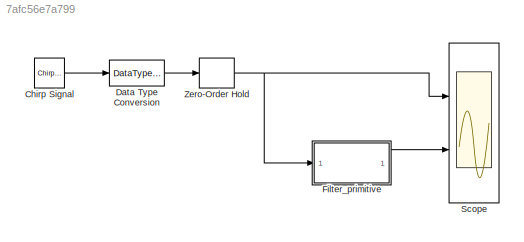
MODEL slx_7afc56e7a799
KIND model
CONFIG AbsTol = auto
CONFIG FixedStep = auto
CONFIG MaxStep = auto
CONFIG MinStep = auto
CONFIG RelTol = 1e-3
CONFIG SampleTimeConstraint = Unconstrained
CONFIG Solver = FixedStepDiscrete
CONFIG SolverMode = SingleTasking
CONFIG SolverName = FixedStepDiscrete
CONFIG StartTime = 0.0
CONFIG StopTime = 10.0
BLOCK [Reference] Chirp Signal  REF=simulink/Sources/Chirp Signal
  Ports = [0, 1]
  SourceBlock = simulink/Sources/Chirp Signal
  SourceType = chirp
BLOCK [DataTypeConversion] Data Type Conversion
  OutDataTypeStr = fixdt(1,16,14)
  RndMeth = Nearest
  SaturateOnIntegerOverflow = off
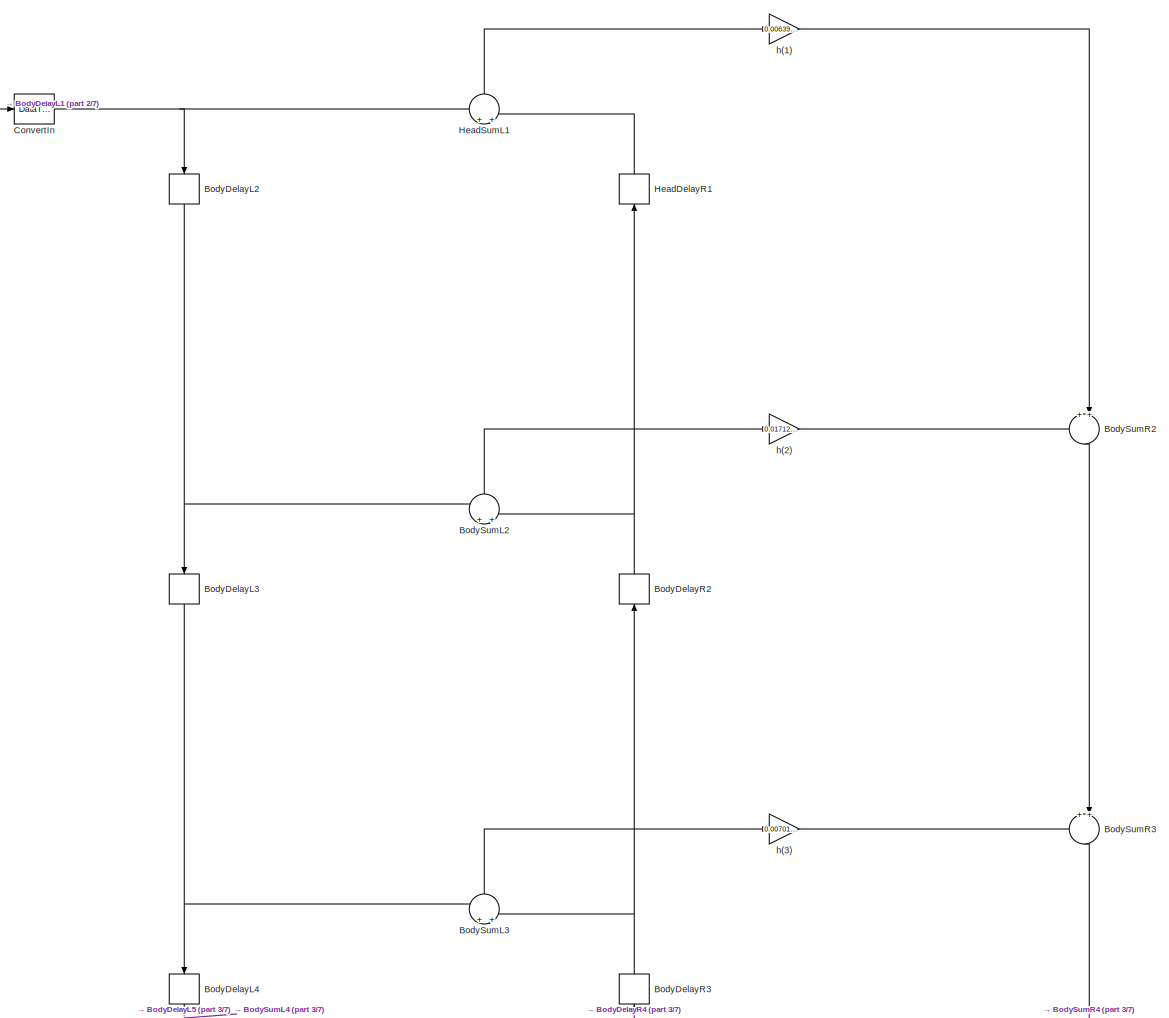
[diagram: Filter_primitive - part 1/7, full width, top band]
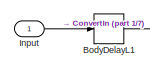
[diagram: Filter_primitive - part 2/7, top left region]
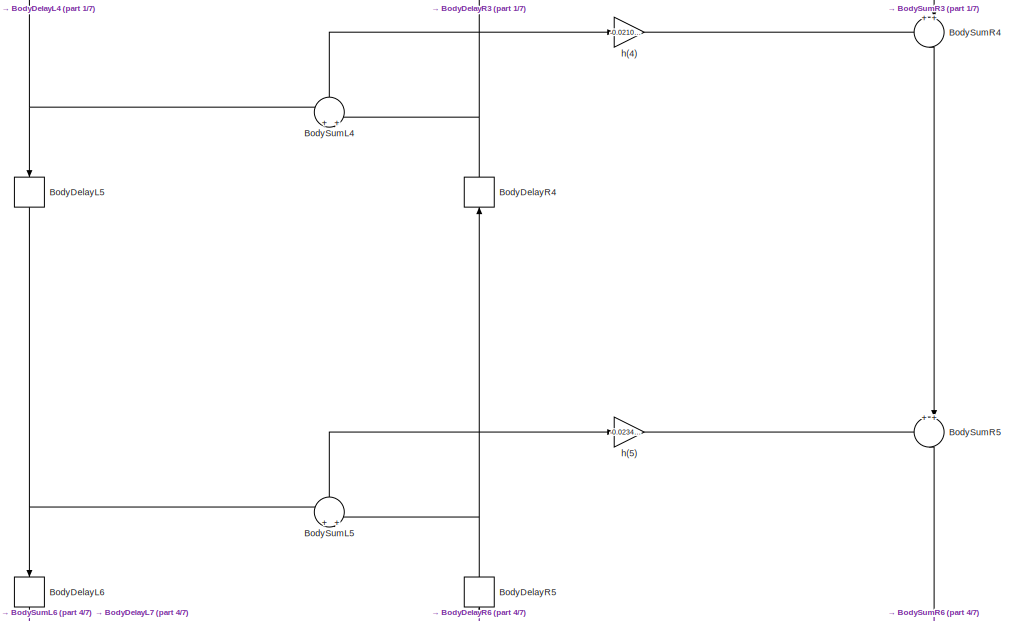
[diagram: Filter_primitive - part 3/7, top center region]
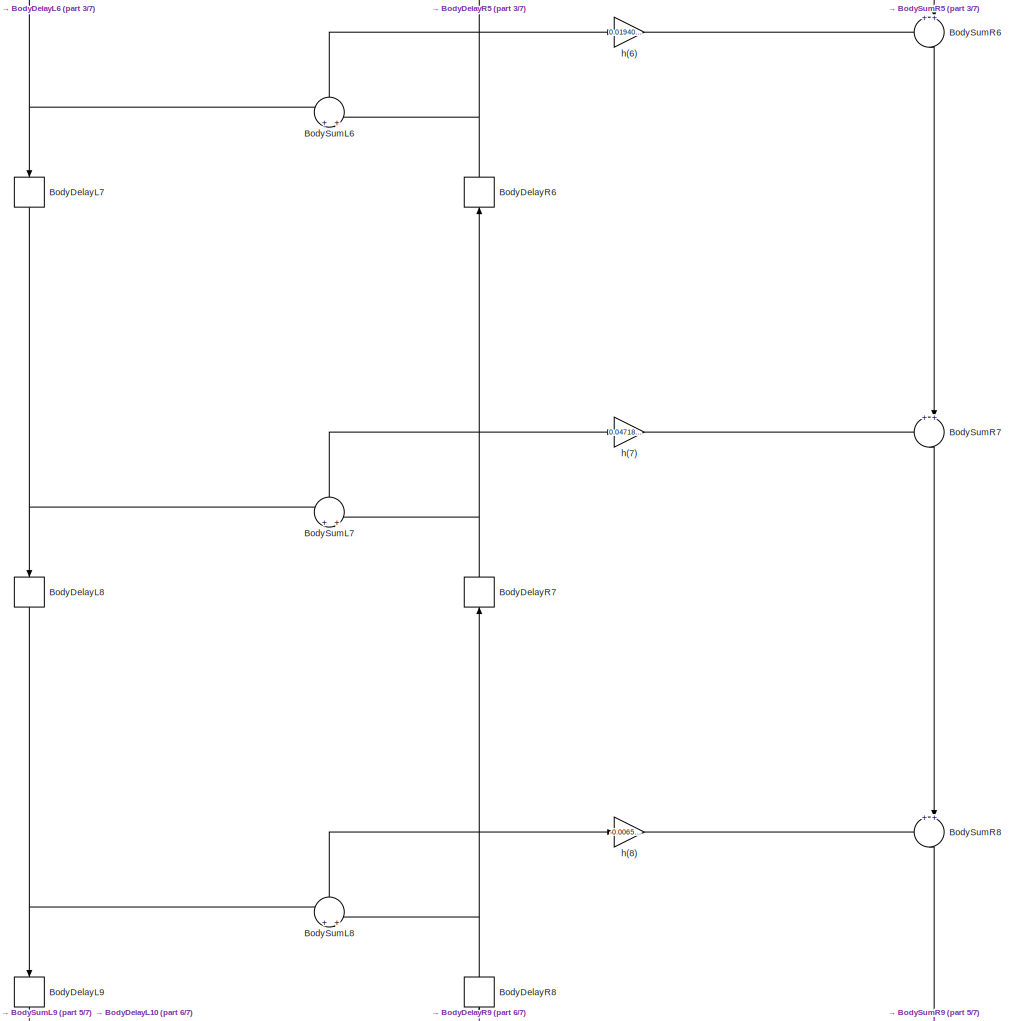
[diagram: Filter_primitive - part 4/7, central region]
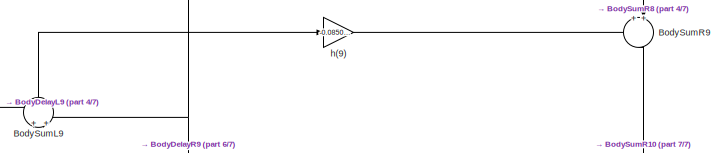
[diagram: Filter_primitive - part 5/7, bottom center region]
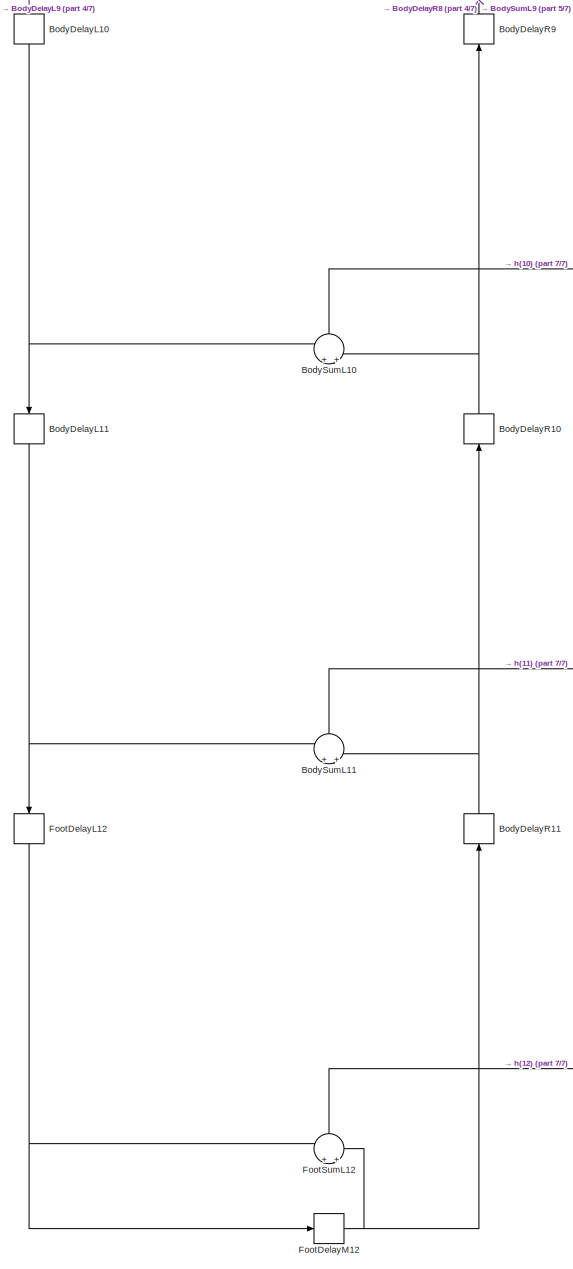
[diagram: Filter_primitive - part 6/7, bottom center region]
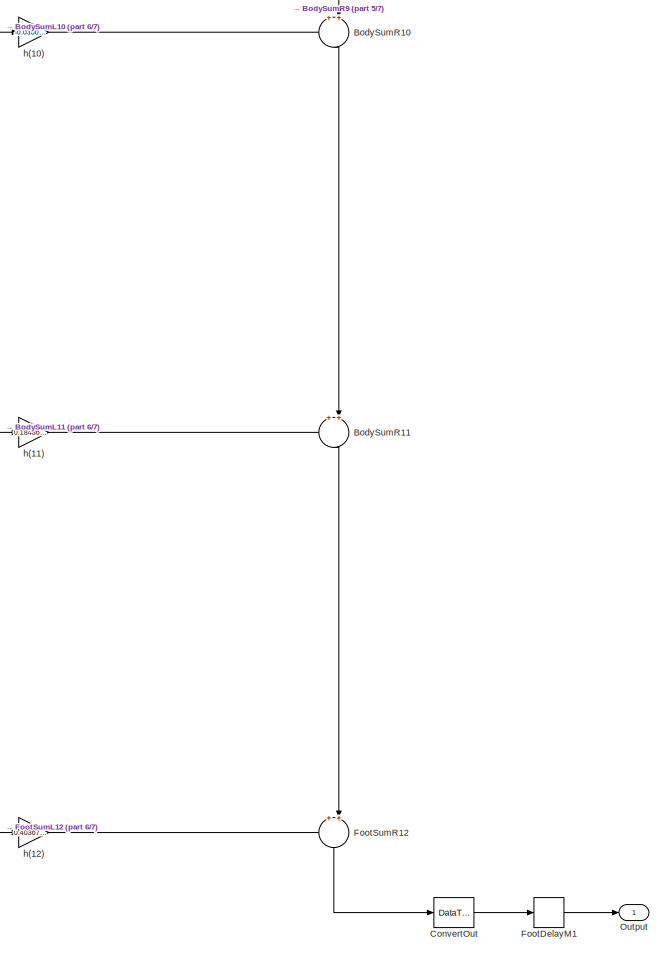
[diagram: Filter_primitive - part 7/7, bottom right region]
BLOCK [SubSystem] Filter_primitive
  ErrorFcn = dspFilterRealizedInBasicElemsAlgLoopErrFcnCallback
  Ports = [1, 1]
  RequestExecContextInheritance = off
  Tag = FilterWizardSubSystem
  UserDataPersistent = on
  Variant = off
BLOCK [Delay] Filter_primitive/BodyDelayL1
  DelayLength = 1
  InitialCondition = 0
  InputPortMap = u0
  InputProcessing = Columns as channels (frame based)
  Ports = [1, 1]
  UserDataPersistent = on
BLOCK [Delay] Filter_primitive/BodyDelayL10
  DelayLength = 1
  InitialCondition = 0
  InputPortMap = u0
  InputProcessing = Columns as channels (frame based)
  Ports = [1, 1]
  UserDataPersistent = on
BLOCK [Delay] Filter_primitive/BodyDelayL11
  DelayLength = 1
  InitialCondition = 0
  InputPortMap = u0
  InputProcessing = Columns as channels (frame based)
  Ports = [1, 1]
  UserDataPersistent = on
BLOCK [Delay] Filter_primitive/BodyDelayL2
  DelayLength = 1
  InitialCondition = 0
  InputPortMap = u0
  InputProcessing = Columns as channels (frame based)
  Ports = [1, 1]
  UserDataPersistent = on
BLOCK [Delay] Filter_primitive/BodyDelayL3
  DelayLength = 1
  InitialCondition = 0
  InputPortMap = u0
  InputProcessing = Columns as channels (frame based)
  Ports = [1, 1]
  UserDataPersistent = on
BLOCK [Delay] Filter_primitive/BodyDelayL4
  DelayLength = 1
  InitialCondition = 0
  InputPortMap = u0
  InputProcessing = Columns as channels (frame based)
  Ports = [1, 1]
  UserDataPersistent = on
BLOCK [Delay] Filter_primitive/BodyDelayL5
  DelayLength = 1
  InitialCondition = 0
  InputPortMap = u0
  InputProcessing = Columns as channels (frame based)
  Ports = [1, 1]
  UserDataPersistent = on
BLOCK [Delay] Filter_primitive/BodyDelayL6
  DelayLength = 1
  InitialCondition = 0
  InputPortMap = u0
  InputProcessing = Columns as channels (frame based)
  Ports = [1, 1]
  UserDataPersistent = on
BLOCK [Delay] Filter_primitive/BodyDelayL7
  DelayLength = 1
  InitialCondition = 0
  InputPortMap = u0
  InputProcessing = Columns as channels (frame based)
  Ports = [1, 1]
  UserDataPersistent = on
BLOCK [Delay] Filter_primitive/BodyDelayL8
  DelayLength = 1
  InitialCondition = 0
  InputPortMap = u0
  InputProcessing = Columns as channels (frame based)
  Ports = [1, 1]
  UserDataPersistent = on
BLOCK [Delay] Filter_primitive/BodyDelayL9
  DelayLength = 1
  InitialCondition = 0
  InputPortMap = u0
  InputProcessing = Columns as channels (frame based)
  Ports = [1, 1]
  UserDataPersistent = on
BLOCK [Delay] Filter_primitive/BodyDelayR10
  DelayLength = 1
  InitialCondition = 0
  InputPortMap = u0
  InputProcessing = Columns as channels (frame based)
  Ports = [1, 1]
  UserDataPersistent = on
BLOCK [Delay] Filter_primitive/BodyDelayR11
  DelayLength = 1
  InitialCondition = 0
  InputPortMap = u0
  InputProcessing = Columns as channels (frame based)
  Ports = [1, 1]
  UserDataPersistent = on
BLOCK [Delay] Filter_primitive/BodyDelayR2
  DelayLength = 1
  InitialCondition = 0
  InputPortMap = u0
  InputProcessing = Columns as channels (frame based)
  Ports = [1, 1]
  UserDataPersistent = on
BLOCK [Delay] Filter_primitive/BodyDelayR3
  DelayLength = 1
  InitialCondition = 0
  InputPortMap = u0
  InputProcessing = Columns as channels (frame based)
  Ports = [1, 1]
  UserDataPersistent = on
BLOCK [Delay] Filter_primitive/BodyDelayR4
  DelayLength = 1
  InitialCondition = 0
  InputPortMap = u0
  InputProcessing = Columns as channels (frame based)
  Ports = [1, 1]
  UserDataPersistent = on
BLOCK [Delay] Filter_primitive/BodyDelayR5
  DelayLength = 1
  InitialCondition = 0
  InputPortMap = u0
  InputProcessing = Columns as channels (frame based)
  Ports = [1, 1]
  UserDataPersistent = on
BLOCK [Delay] Filter_primitive/BodyDelayR6
  DelayLength = 1
  InitialCondition = 0
  InputPortMap = u0
  InputProcessing = Columns as channels (frame based)
  Ports = [1, 1]
  UserDataPersistent = on
BLOCK [Delay] Filter_primitive/BodyDelayR7
  DelayLength = 1
  InitialCondition = 0
  InputPortMap = u0
  InputProcessing = Columns as channels (frame based)
  Ports = [1, 1]
  UserDataPersistent = on
BLOCK [Delay] Filter_primitive/BodyDelayR8
  DelayLength = 1
  InitialCondition = 0
  InputPortMap = u0
  InputProcessing = Columns as channels (frame based)
  Ports = [1, 1]
  UserDataPersistent = on
BLOCK [Delay] Filter_primitive/BodyDelayR9
  DelayLength = 1
  InitialCondition = 0
  InputPortMap = u0
  InputProcessing = Columns as channels (frame based)
  Ports = [1, 1]
  UserDataPersistent = on
BLOCK [Sum] Filter_primitive/BodySumL10
  AccumDataTypeStr = fixdt(1,17,14)
  IconShape = round
  InputSameDT = off
  Inputs = +|+
  OutDataTypeStr = fixdt(1,17,14)
  Ports = [2, 1]
  RndMeth = Convergent
  SaturateOnIntegerOverflow = off
BLOCK [Sum] Filter_primitive/BodySumL11
  AccumDataTypeStr = fixdt(1,17,14)
  IconShape = round
  InputSameDT = off
  Inputs = +|+
  OutDataTypeStr = fixdt(1,17,14)
  Ports = [2, 1]
  RndMeth = Convergent
  SaturateOnIntegerOverflow = off
BLOCK [Sum] Filter_primitive/BodySumL2
  AccumDataTypeStr = fixdt(1,17,14)
  IconShape = round
  InputSameDT = off
  Inputs = +|+
  OutDataTypeStr = fixdt(1,17,14)
  Ports = [2, 1]
  RndMeth = Convergent
  SaturateOnIntegerOverflow = off
BLOCK [Sum] Filter_primitive/BodySumL3
  AccumDataTypeStr = fixdt(1,17,14)
  IconShape = round
  InputSameDT = off
  Inputs = +|+
  OutDataTypeStr = fixdt(1,17,14)
  Ports = [2, 1]
  RndMeth = Convergent
  SaturateOnIntegerOverflow = off
BLOCK [Sum] Filter_primitive/BodySumL4
  AccumDataTypeStr = fixdt(1,17,14)
  IconShape = round
  InputSameDT = off
  Inputs = +|+
  OutDataTypeStr = fixdt(1,17,14)
  Ports = [2, 1]
  RndMeth = Convergent
  SaturateOnIntegerOverflow = off
BLOCK [Sum] Filter_primitive/BodySumL5
  AccumDataTypeStr = fixdt(1,17,14)
  IconShape = round
  InputSameDT = off
  Inputs = +|+
  OutDataTypeStr = fixdt(1,17,14)
  Ports = [2, 1]
  RndMeth = Convergent
  SaturateOnIntegerOverflow = off
BLOCK [Sum] Filter_primitive/BodySumL6
  AccumDataTypeStr = fixdt(1,17,14)
  IconShape = round
  InputSameDT = off
  Inputs = +|+
  OutDataTypeStr = fixdt(1,17,14)
  Ports = [2, 1]
  RndMeth = Convergent
  SaturateOnIntegerOverflow = off
BLOCK [Sum] Filter_primitive/BodySumL7
  AccumDataTypeStr = fixdt(1,17,14)
  IconShape = round
  InputSameDT = off
  Inputs = +|+
  OutDataTypeStr = fixdt(1,17,14)
  Ports = [2, 1]
  RndMeth = Convergent
  SaturateOnIntegerOverflow = off
BLOCK [Sum] Filter_primitive/BodySumL8
  AccumDataTypeStr = fixdt(1,17,14)
  IconShape = round
  InputSameDT = off
  Inputs = +|+
  OutDataTypeStr = fixdt(1,17,14)
  Ports = [2, 1]
  RndMeth = Convergent
  SaturateOnIntegerOverflow = off
BLOCK [Sum] Filter_primitive/BodySumL9
  AccumDataTypeStr = fixdt(1,17,14)
  IconShape = round
  InputSameDT = off
  Inputs = +|+
  OutDataTypeStr = fixdt(1,17,14)
  Ports = [2, 1]
  RndMeth = Convergent
  SaturateOnIntegerOverflow = off
BLOCK [Sum] Filter_primitive/BodySumR10
  AccumDataTypeStr = fixdt(1,33,30)
  IconShape = round
  InputSameDT = off
  Inputs = ++|
  OutDataTypeStr = fixdt(1,33,30)
  Ports = [2, 1]
  RndMeth = Convergent
  SaturateOnIntegerOverflow = off
BLOCK [Sum] Filter_primitive/BodySumR11
  AccumDataTypeStr = fixdt(1,33,30)
  IconShape = round
  InputSameDT = off
  Inputs = ++|
  OutDataTypeStr = fixdt(1,33,30)
  Ports = [2, 1]
  RndMeth = Convergent
  SaturateOnIntegerOverflow = off
BLOCK [Sum] Filter_primitive/BodySumR2
  AccumDataTypeStr = fixdt(1,33,30)
  IconShape = round
  InputSameDT = off
  Inputs = ++|
  OutDataTypeStr = fixdt(1,33,30)
  Ports = [2, 1]
  RndMeth = Convergent
  SaturateOnIntegerOverflow = off
BLOCK [Sum] Filter_primitive/BodySumR3
  AccumDataTypeStr = fixdt(1,33,30)
  IconShape = round
  InputSameDT = off
  Inputs = ++|
  OutDataTypeStr = fixdt(1,33,30)
  Ports = [2, 1]
  RndMeth = Convergent
  SaturateOnIntegerOverflow = off
BLOCK [Sum] Filter_primitive/BodySumR4
  AccumDataTypeStr = fixdt(1,33,30)
  IconShape = round
  InputSameDT = off
  Inputs = ++|
  OutDataTypeStr = fixdt(1,33,30)
  Ports = [2, 1]
  RndMeth = Convergent
  SaturateOnIntegerOverflow = off
BLOCK [Sum] Filter_primitive/BodySumR5
  AccumDataTypeStr = fixdt(1,33,30)
  IconShape = round
  InputSameDT = off
  Inputs = ++|
  OutDataTypeStr = fixdt(1,33,30)
  Ports = [2, 1]
  RndMeth = Convergent
  SaturateOnIntegerOverflow = off
BLOCK [Sum] Filter_primitive/BodySumR6
  AccumDataTypeStr = fixdt(1,33,30)
  IconShape = round
  InputSameDT = off
  Inputs = ++|
  OutDataTypeStr = fixdt(1,33,30)
  Ports = [2, 1]
  RndMeth = Convergent
  SaturateOnIntegerOverflow = off
BLOCK [Sum] Filter_primitive/BodySumR7
  AccumDataTypeStr = fixdt(1,33,30)
  IconShape = round
  InputSameDT = off
  Inputs = ++|
  OutDataTypeStr = fixdt(1,33,30)
  Ports = [2, 1]
  RndMeth = Convergent
  SaturateOnIntegerOverflow = off
BLOCK [Sum] Filter_primitive/BodySumR8
  AccumDataTypeStr = fixdt(1,33,30)
  IconShape = round
  InputSameDT = off
  Inputs = ++|
  OutDataTypeStr = fixdt(1,33,30)
  Ports = [2, 1]
  RndMeth = Convergent
  SaturateOnIntegerOverflow = off
BLOCK [Sum] Filter_primitive/BodySumR9
  AccumDataTypeStr = fixdt(1,33,30)
  IconShape = round
  InputSameDT = off
  Inputs = ++|
  OutDataTypeStr = fixdt(1,33,30)
  Ports = [2, 1]
  RndMeth = Convergent
  SaturateOnIntegerOverflow = off
BLOCK [DataTypeConversion] Filter_primitive/ConvertIn
  OutDataTypeStr = fixdt(1,16,14)
  RndMeth = Nearest
BLOCK [DataTypeConversion] Filter_primitive/ConvertOut
  OutDataTypeStr = fixdt(1,33,30)
  RndMeth = Convergent
  SaturateOnIntegerOverflow = off
BLOCK [Delay] Filter_primitive/FootDelayL12
  DelayLength = 1
  InitialCondition = 0
  InputPortMap = u0
  InputProcessing = Columns as channels (frame based)
  Ports = [1, 1]
  UserDataPersistent = on
BLOCK [Delay] Filter_primitive/FootDelayM1
  DelayLength = 1
  InitialCondition = 0
  InputPortMap = u0
  InputProcessing = Columns as channels (frame based)
  Ports = [1, 1]
  UserDataPersistent = on
BLOCK [Delay] Filter_primitive/FootDelayM12
  DelayLength = 1
  InitialCondition = 0
  InputPortMap = u0
  InputProcessing = Columns as channels (frame based)
  Ports = [1, 1]
  UserDataPersistent = on
BLOCK [Sum] Filter_primitive/FootSumL12
  AccumDataTypeStr = fixdt(1,17,14)
  IconShape = round
  InputSameDT = off
  Inputs = +|+
  OutDataTypeStr = fixdt(1,17,14)
  Ports = [2, 1]
  RndMeth = Convergent
  SaturateOnIntegerOverflow = off
BLOCK [Sum] Filter_primitive/FootSumR12
  AccumDataTypeStr = fixdt(1,33,30)
  IconShape = round
  InputSameDT = off
  Inputs = ++|
  OutDataTypeStr = fixdt(1,33,30)
  Ports = [2, 1]
  RndMeth = Convergent
  SaturateOnIntegerOverflow = off
BLOCK [Delay] Filter_primitive/HeadDelayR1
  DelayLength = 1
  InitialCondition = 0
  InputPortMap = u0
  InputProcessing = Columns as channels (frame based)
  Ports = [1, 1]
  UserDataPersistent = on
BLOCK [Sum] Filter_primitive/HeadSumL1
  AccumDataTypeStr = fixdt(1,17,14)
  IconShape = round
  InputSameDT = off
  Inputs = +|+
  OutDataTypeStr = fixdt(1,17,14)
  Ports = [2, 1]
  RndMeth = Convergent
  SaturateOnIntegerOverflow = off
BLOCK [Inport] Filter_primitive/Input
  IconDisplay = Port number
BLOCK [Outport] Filter_primitive/Output
  IconDisplay = Port number
BLOCK [Gain] Filter_primitive/h(1)
  Gain = 0.0063982413099744765
  OutDataTypeStr = fixdt(1,32,30)
  ParamDataTypeStr = fixdt(1,16,16)
  RndMeth = Convergent
  SaturateOnIntegerOverflow = off
BLOCK [Gain] Filter_primitive/h(10)
  Gain = -0.036009880335384374
  OutDataTypeStr = fixdt(1,32,30)
  ParamDataTypeStr = fixdt(1,16,16)
  RndMeth = Convergent
  SaturateOnIntegerOverflow = off
BLOCK [Gain] Filter_primitive/h(11)
  Gain = 0.18486379057310132
  OutDataTypeStr = fixdt(1,32,30)
  ParamDataTypeStr = fixdt(1,16,16)
  RndMeth = Convergent
  SaturateOnIntegerOverflow = off
BLOCK [Gain] Filter_primitive/h(12)
  Gain = 0.40367939584234813
  OutDataTypeStr = fixdt(1,32,30)
  ParamDataTypeStr = fixdt(1,16,16)
  RndMeth = Convergent
  SaturateOnIntegerOverflow = off
BLOCK [Gain] Filter_primitive/h(2)
  Gain = 0.017126817223500408
  OutDataTypeStr = fixdt(1,32,30)
  ParamDataTypeStr = fixdt(1,16,16)
  RndMeth = Convergent
  SaturateOnIntegerOverflow = off
BLOCK [Gain] Filter_primitive/h(3)
  Gain = 0.0070128975058944051
  OutDataTypeStr = fixdt(1,32,30)
  ParamDataTypeStr = fixdt(1,16,16)
  RndMeth = Convergent
  SaturateOnIntegerOverflow = off
BLOCK [Gain] Filter_primitive/h(4)
  Gain = -0.021038501476281671
  OutDataTypeStr = fixdt(1,32,30)
  ParamDataTypeStr = fixdt(1,16,16)
  RndMeth = Convergent
  SaturateOnIntegerOverflow = off
BLOCK [Gain] Filter_primitive/h(5)
  Gain = -0.023406043241502805
  OutDataTypeStr = fixdt(1,32,30)
  ParamDataTypeStr = fixdt(1,16,16)
  RndMeth = Convergent
  SaturateOnIntegerOverflow = off
BLOCK [Gain] Filter_primitive/h(6)
  Gain = 0.019405302390439257
  OutDataTypeStr = fixdt(1,32,30)
  ParamDataTypeStr = fixdt(1,16,16)
  RndMeth = Convergent
  SaturateOnIntegerOverflow = off
BLOCK [Gain] Filter_primitive/h(7)
  Gain = 0.047181121982251439
  OutDataTypeStr = fixdt(1,32,30)
  ParamDataTypeStr = fixdt(1,16,16)
  RndMeth = Convergent
  SaturateOnIntegerOverflow = off
BLOCK [Gain] Filter_primitive/h(8)
  Gain = -0.0065051944440279383
  OutDataTypeStr = fixdt(1,32,30)
  ParamDataTypeStr = fixdt(1,16,16)
  RndMeth = Convergent
  SaturateOnIntegerOverflow = off
BLOCK [Gain] Filter_primitive/h(9)
  Gain = -0.085020221785316305
  OutDataTypeStr = fixdt(1,32,30)
  ParamDataTypeStr = fixdt(1,16,16)
  RndMeth = Convergent
  SaturateOnIntegerOverflow = off
BLOCK [Scope] Scope
  NumInputPorts = 2
  Ports = [2]
  ScopeSpecificationString = Simulink.scopes.TimeScopeBlockCfg('CurrentConfiguration', extmgr.ConfigurationSet(extmgr.Configuration('Core','General UI',true),extmgr.Configuration('Core','Source UI',true),extmgr.Configuration('Sources','WiredSimulink',true,'DataLoggingSaveFormat','StructureWithTime','DataLoggingDecimation','1','DataLoggingDecimateData',true),extmgr.Configuration('Visuals','Time Domain',true,'SerializedDisplays...<+2390ch>
BLOCK [ZeroOrderHold] Zero-Order Hold
  SampleTime = 1/1000
LINE Chirp Signal:1 -> Data Type Conversion:1
LINE Data Type Conversion:1 -> Zero-Order Hold:1
NET Filter_primitive/BodyDelayL10:1 -> Filter_primitive/BodyDelayL11:1, Filter_primitive/BodySumL10:1
NET Filter_primitive/BodyDelayL11:1 -> Filter_primitive/BodySumL11:1, Filter_primitive/FootDelayL12:1
LINE Filter_primitive/BodyDelayL1:1 -> Filter_primitive/ConvertIn:1
NET Filter_primitive/BodyDelayL2:1 -> Filter_primitive/BodyDelayL3:1, Filter_primitive/BodySumL2:1
NET Filter_primitive/BodyDelayL3:1 -> Filter_primitive/BodyDelayL4:1, Filter_primitive/BodySumL3:1
NET Filter_primitive/BodyDelayL4:1 -> Filter_primitive/BodyDelayL5:1, Filter_primitive/BodySumL4:1
NET Filter_primitive/BodyDelayL5:1 -> Filter_primitive/BodyDelayL6:1, Filter_primitive/BodySumL5:1
NET Filter_primitive/BodyDelayL6:1 -> Filter_primitive/BodyDelayL7:1, Filter_primitive/BodySumL6:1
NET Filter_primitive/BodyDelayL7:1 -> Filter_primitive/BodyDelayL8:1, Filter_primitive/BodySumL7:1
NET Filter_primitive/BodyDelayL8:1 -> Filter_primitive/BodyDelayL9:1, Filter_primitive/BodySumL8:1
NET Filter_primitive/BodyDelayL9:1 -> Filter_primitive/BodyDelayL10:1, Filter_primitive/BodySumL9:1
NET Filter_primitive/BodyDelayR10:1 -> Filter_primitive/BodyDelayR9:1, Filter_primitive/BodySumL10:2
NET Filter_primitive/BodyDelayR11:1 -> Filter_primitive/BodyDelayR10:1, Filter_primitive/BodySumL11:2
NET Filter_primitive/BodyDelayR2:1 -> Filter_primitive/BodySumL2:2, Filter_primitive/HeadDelayR1:1
NET Filter_primitive/BodyDelayR3:1 -> Filter_primitive/BodyDelayR2:1, Filter_primitive/BodySumL3:2
NET Filter_primitive/BodyDelayR4:1 -> Filter_primitive/BodyDelayR3:1, Filter_primitive/BodySumL4:2
NET Filter_primitive/BodyDelayR5:1 -> Filter_primitive/BodyDelayR4:1, Filter_primitive/BodySumL5:2
NET Filter_primitive/BodyDelayR6:1 -> Filter_primitive/BodyDelayR5:1, Filter_primitive/BodySumL6:2
NET Filter_primitive/BodyDelayR7:1 -> Filter_primitive/BodyDelayR6:1, Filter_primitive/BodySumL7:2
NET Filter_primitive/BodyDelayR8:1 -> Filter_primitive/BodyDelayR7:1, Filter_primitive/BodySumL8:2
NET Filter_primitive/BodyDelayR9:1 -> Filter_primitive/BodyDelayR8:1, Filter_primitive/BodySumL9:2
LINE Filter_primitive/BodySumL10:1 -> Filter_primitive/h(10):1
LINE Filter_primitive/BodySumL11:1 -> Filter_primitive/h(11):1
LINE Filter_primitive/BodySumL2:1 -> Filter_primitive/h(2):1
LINE Filter_primitive/BodySumL3:1 -> Filter_primitive/h(3):1
LINE Filter_primitive/BodySumL4:1 -> Filter_primitive/h(4):1
LINE Filter_primitive/BodySumL5:1 -> Filter_primitive/h(5):1
LINE Filter_primitive/BodySumL6:1 -> Filter_primitive/h(6):1
LINE Filter_primitive/BodySumL7:1 -> Filter_primitive/h(7):1
LINE Filter_primitive/BodySumL8:1 -> Filter_primitive/h(8):1
LINE Filter_primitive/BodySumL9:1 -> Filter_primitive/h(9):1
LINE Filter_primitive/BodySumR10:1 -> Filter_primitive/BodySumR11:2
LINE Filter_primitive/BodySumR11:1 -> Filter_primitive/FootSumR12:2
LINE Filter_primitive/BodySumR2:1 -> Filter_primitive/BodySumR3:2
LINE Filter_primitive/BodySumR3:1 -> Filter_primitive/BodySumR4:2
LINE Filter_primitive/BodySumR4:1 -> Filter_primitive/BodySumR5:2
LINE Filter_primitive/BodySumR5:1 -> Filter_primitive/BodySumR6:2
LINE Filter_primitive/BodySumR6:1 -> Filter_primitive/BodySumR7:2
LINE Filter_primitive/BodySumR7:1 -> Filter_primitive/BodySumR8:2
LINE Filter_primitive/BodySumR8:1 -> Filter_primitive/BodySumR9:2
LINE Filter_primitive/BodySumR9:1 -> Filter_primitive/BodySumR10:2
NET Filter_primitive/ConvertIn:1 -> Filter_primitive/BodyDelayL2:1, Filter_primitive/HeadSumL1:1
LINE Filter_primitive/ConvertOut:1 -> Filter_primitive/FootDelayM1:1
NET Filter_primitive/FootDelayL12:1 -> Filter_primitive/FootDelayM12:1, Filter_primitive/FootSumL12:1
NET Filter_primitive/FootDelayM12:1 -> Filter_primitive/BodyDelayR11:1, Filter_primitive/FootSumL12:2
LINE Filter_primitive/FootDelayM1:1 -> Filter_primitive/Output:1
LINE Filter_primitive/FootSumL12:1 -> Filter_primitive/h(12):1
LINE Filter_primitive/FootSumR12:1 -> Filter_primitive/ConvertOut:1
LINE Filter_primitive/HeadDelayR1:1 -> Filter_primitive/HeadSumL1:2
LINE Filter_primitive/HeadSumL1:1 -> Filter_primitive/h(1):1
LINE Filter_primitive/Input:1 -> Filter_primitive/BodyDelayL1:1
LINE Filter_primitive/h(1):1 -> Filter_primitive/BodySumR2:2
LINE Filter_primitive/h(10):1 -> Filter_primitive/BodySumR10:1
LINE Filter_primitive/h(11):1 -> Filter_primitive/BodySumR11:1
LINE Filter_primitive/h(12):1 -> Filter_primitive/FootSumR12:1
LINE Filter_primitive/h(2):1 -> Filter_primitive/BodySumR2:1
LINE Filter_primitive/h(3):1 -> Filter_primitive/BodySumR3:1
LINE Filter_primitive/h(4):1 -> Filter_primitive/BodySumR4:1
LINE Filter_primitive/h(5):1 -> Filter_primitive/BodySumR5:1
LINE Filter_primitive/h(6):1 -> Filter_primitive/BodySumR6:1
LINE Filter_primitive/h(7):1 -> Filter_primitive/BodySumR7:1
LINE Filter_primitive/h(8):1 -> Filter_primitive/BodySumR8:1
LINE Filter_primitive/h(9):1 -> Filter_primitive/BodySumR9:1
LINE Filter_primitive:1 -> Scope:2
NET Zero-Order Hold:1 -> Filter_primitive:1, Scope:1
note: NET lines group one-source signal fan-out (src -> all destinations, sorted); 1:1 wires keep LINE
